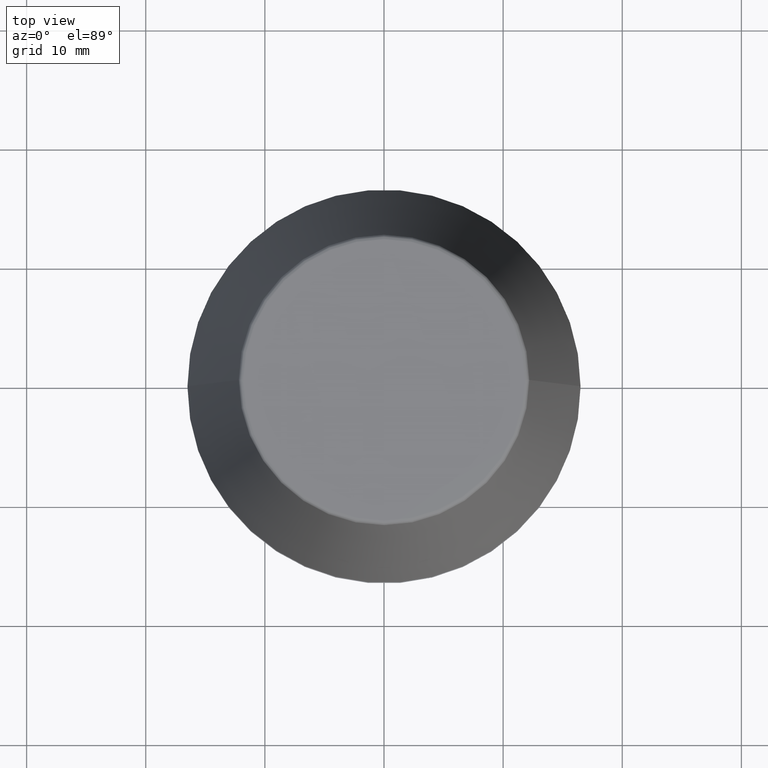
[diagram: clean part render]
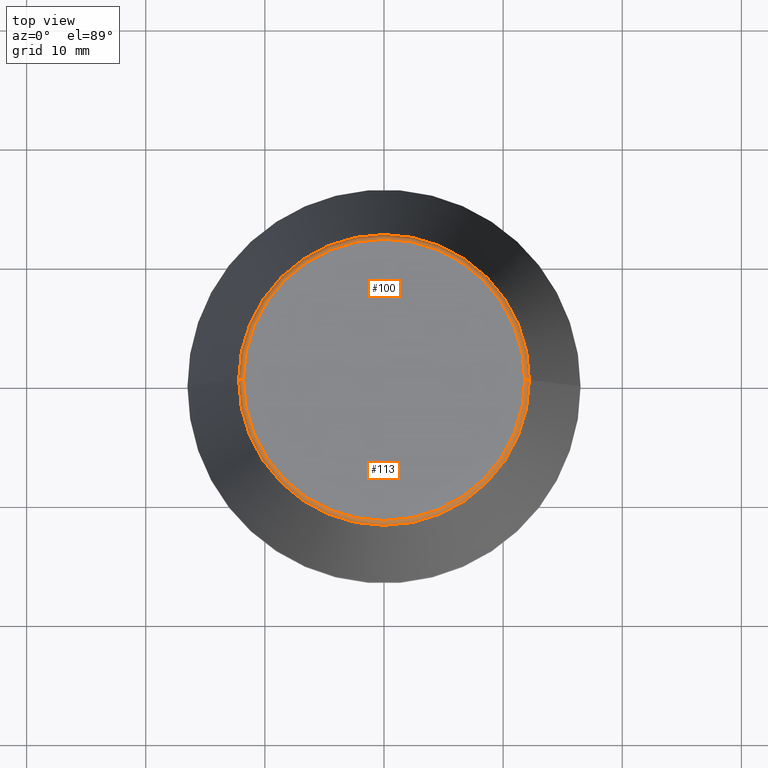
[diagram: same view with one multi-face feature highlighted, each face labeled with its STEP entity id]
A machine part, top view. The highlighted faces form ONE feature: a constant-radius fillet chain: 2 tangent blend faces with common blend radius 0.4 mm. The faces share edges in the B-rep.
Their STEP definitions:
[1] entity #100 (Torus):
#30 = VERTEX_POINT ( 'NONE', #198 ) ;
#37 = DIRECTION ( 'NONE',  ( -0.0000000000000000000, -0.0000000000000000000, 1.000000000000000000 ) ) ;
#50 = VERTEX_POINT ( 'NONE', #223 ) ;
#53 = AXIS2_PLACEMENT_3D ( 'NONE', #301, #37, #266 ) ;
#56 = VERTEX_POINT ( 'NONE', #282 ) ;
#57 = DIRECTION ( 'NONE',  ( -0.0000000000000000000, -0.0000000000000000000, 1.000000000000000000 ) ) ;
#77 = CIRCLE ( 'NONE', #298, 12.20600611160694300 ) ;
#87 = DIRECTION ( 'NONE',  ( 0.0000000000000000000, -1.000000000000000000, 0.0000000000000000000 ) ) ;
#100 = ADVANCED_FACE ( 'NONE', ( #193 ), #338, .T. ) ;
#126 = CARTESIAN_POINT ( 'NONE',  ( 11.80989888411031400, 0.0000000000000000000, 39.60000000000000100 ) ) ;
#127 = DIRECTION ( 'NONE',  ( 0.0000000000000000000, 0.0000000000000000000, -1.000000000000000000 ) ) ;
#131 = DIRECTION ( 'NONE',  ( -1.000000000000000000, 1.224646799147352500E-016, 0.0000000000000000000 ) ) ;
#136 = DIRECTION ( 'NONE',  ( 1.000000000000000000, 0.0000000000000000000, 0.0000000000000000000 ) ) ;
#154 = AXIS2_PLACEMENT_3D ( 'NONE', #369, #242, #136 ) ;
#157 = CARTESIAN_POINT ( 'NONE',  ( 11.80989888411031400, 0.0000000000000000000, 40.00000000000000700 ) ) ;
#158 = DIRECTION ( 'NONE',  ( 1.224646799147353200E-016, 1.000000000000000000, 0.0000000000000000000 ) ) ;
#172 = EDGE_LOOP ( 'NONE', ( #290, #191, #345, #303 ) ) ;
#187 = CARTESIAN_POINT ( 'NONE',  ( -11.80989888411031400, 1.446295486667959300E-015, 39.60000000000000100 ) ) ;
#191 = ORIENTED_EDGE ( 'NONE', *, *, #227, .T. ) ;
#193 = FACE_OUTER_BOUND ( 'NONE', #172, .T. ) ;
#198 = CARTESIAN_POINT ( 'NONE',  ( -12.20600611160694300, 0.0000000000000000000, 39.65566924038402900 ) ) ;
#223 = CARTESIAN_POINT ( 'NONE',  ( -11.80989888411031400, 1.470550059081603400E-015, 40.00000000000000700 ) ) ;
#227 = EDGE_CURVE ( 'NONE', #30, #50, #249, .T. ) ;
#234 = EDGE_CURVE ( 'NONE', #360, #50, #322, .T. ) ;
#239 = EDGE_CURVE ( 'NONE', #56, #30, #77, .T. ) ;
#242 = DIRECTION ( 'NONE',  ( -0.0000000000000000000, -0.0000000000000000000, 1.000000000000000000 ) ) ;
#249 = CIRCLE ( 'NONE', #349, 0.4000000000000028000 ) ;
#250 = AXIS2_PLACEMENT_3D ( 'NONE', #126, #87, #127 ) ;
#266 = DIRECTION ( 'NONE',  ( 1.000000000000000000, 0.0000000000000000000, 0.0000000000000000000 ) ) ;
#282 = CARTESIAN_POINT ( 'NONE',  ( 12.20600611160694300, 1.757755848304969800E-015, 39.65566924038402900 ) ) ;
#287 = CARTESIAN_POINT ( 'NONE',  ( 0.0000000000000000000, 0.0000000000000000000, 39.65566924038402900 ) ) ;
#290 = ORIENTED_EDGE ( 'NONE', *, *, #239, .T. ) ;
#298 = AXIS2_PLACEMENT_3D ( 'NONE', #287, #57, #319 ) ;
#301 = CARTESIAN_POINT ( 'NONE',  ( 0.0000000000000000000, 0.0000000000000000000, 40.00000000000000700 ) ) ;
#303 = ORIENTED_EDGE ( 'NONE', *, *, #321, .F. ) ;
#319 = DIRECTION ( 'NONE',  ( 1.000000000000000000, 0.0000000000000000000, 0.0000000000000000000 ) ) ;
#321 = EDGE_CURVE ( 'NONE', #56, #360, #378, .T. ) ;
#322 = CIRCLE ( 'NONE', #53, 11.80989888411031400 ) ;
#338 = TOROIDAL_SURFACE ( 'NONE', #154, 11.80989888411031400, 0.4000000000000026900 ) ;
#345 = ORIENTED_EDGE ( 'NONE', *, *, #234, .F. ) ;
#349 = AXIS2_PLACEMENT_3D ( 'NONE', #187, #158, #131 ) ;
#360 = VERTEX_POINT ( 'NONE', #157 ) ;
#369 = CARTESIAN_POINT ( 'NONE',  ( 0.0000000000000000000, 0.0000000000000000000, 39.60000000000000100 ) ) ;
#378 = CIRCLE ( 'NONE', #250, 0.4000000000000045200 ) ;
[2] entity #113 (Torus):
#16 = ORIENTED_EDGE ( 'NONE', *, *, #321, .T. ) ;
#30 = VERTEX_POINT ( 'NONE', #198 ) ;
#43 = CARTESIAN_POINT ( 'NONE',  ( 0.0000000000000000000, 0.0000000000000000000, 39.60000000000000100 ) ) ;
#50 = VERTEX_POINT ( 'NONE', #223 ) ;
#56 = VERTEX_POINT ( 'NONE', #282 ) ;
#62 = TOROIDAL_SURFACE ( 'NONE', #141, 11.80989888411031400, 0.4000000000000026900 ) ;
#83 = AXIS2_PLACEMENT_3D ( 'NONE', #92, #365, #188 ) ;
#87 = DIRECTION ( 'NONE',  ( 0.0000000000000000000, -1.000000000000000000, 0.0000000000000000000 ) ) ;
#92 = CARTESIAN_POINT ( 'NONE',  ( 0.0000000000000000000, 0.0000000000000000000, 40.00000000000000700 ) ) ;
#98 = AXIS2_PLACEMENT_3D ( 'NONE', #347, #367, #101 ) ;
#101 = DIRECTION ( 'NONE',  ( 1.000000000000000000, 0.0000000000000000000, 0.0000000000000000000 ) ) ;
#113 = ADVANCED_FACE ( 'NONE', ( #294 ), #62, .T. ) ;
#126 = CARTESIAN_POINT ( 'NONE',  ( 11.80989888411031400, 0.0000000000000000000, 39.60000000000000100 ) ) ;
#127 = DIRECTION ( 'NONE',  ( 0.0000000000000000000, 0.0000000000000000000, -1.000000000000000000 ) ) ;
#131 = DIRECTION ( 'NONE',  ( -1.000000000000000000, 1.224646799147352500E-016, 0.0000000000000000000 ) ) ;
#135 = DIRECTION ( 'NONE',  ( 1.000000000000000000, 0.0000000000000000000, 0.0000000000000000000 ) ) ;
#141 = AXIS2_PLACEMENT_3D ( 'NONE', #43, #194, #135 ) ;
#157 = CARTESIAN_POINT ( 'NONE',  ( 11.80989888411031400, 0.0000000000000000000, 40.00000000000000700 ) ) ;
#158 = DIRECTION ( 'NONE',  ( 1.224646799147353200E-016, 1.000000000000000000, 0.0000000000000000000 ) ) ;
#178 = EDGE_CURVE ( 'NONE', #30, #56, #309, .T. ) ;
#187 = CARTESIAN_POINT ( 'NONE',  ( -11.80989888411031400, 1.446295486667959300E-015, 39.60000000000000100 ) ) ;
#188 = DIRECTION ( 'NONE',  ( 1.000000000000000000, 0.0000000000000000000, 0.0000000000000000000 ) ) ;
#190 = EDGE_CURVE ( 'NONE', #50, #360, #199, .T. ) ;
#194 = DIRECTION ( 'NONE',  ( -0.0000000000000000000, -0.0000000000000000000, 1.000000000000000000 ) ) ;
#198 = CARTESIAN_POINT ( 'NONE',  ( -12.20600611160694300, 0.0000000000000000000, 39.65566924038402900 ) ) ;
#199 = CIRCLE ( 'NONE', #83, 11.80989888411031400 ) ;
#223 = CARTESIAN_POINT ( 'NONE',  ( -11.80989888411031400, 1.470550059081603400E-015, 40.00000000000000700 ) ) ;
#227 = EDGE_CURVE ( 'NONE', #30, #50, #249, .T. ) ;
#249 = CIRCLE ( 'NONE', #349, 0.4000000000000028000 ) ;
#250 = AXIS2_PLACEMENT_3D ( 'NONE', #126, #87, #127 ) ;
#263 = ORIENTED_EDGE ( 'NONE', *, *, #227, .F. ) ;
#280 = ORIENTED_EDGE ( 'NONE', *, *, #178, .T. ) ;
#282 = CARTESIAN_POINT ( 'NONE',  ( 12.20600611160694300, 1.757755848304969800E-015, 39.65566924038402900 ) ) ;
#294 = FACE_OUTER_BOUND ( 'NONE', #302, .T. ) ;
#302 = EDGE_LOOP ( 'NONE', ( #263, #280, #16, #366 ) ) ;
#309 = CIRCLE ( 'NONE', #98, 12.20600611160694300 ) ;
#321 = EDGE_CURVE ( 'NONE', #56, #360, #378, .T. ) ;
#347 = CARTESIAN_POINT ( 'NONE',  ( 0.0000000000000000000, 0.0000000000000000000, 39.65566924038402900 ) ) ;
#349 = AXIS2_PLACEMENT_3D ( 'NONE', #187, #158, #131 ) ;
#360 = VERTEX_POINT ( 'NONE', #157 ) ;
#365 = DIRECTION ( 'NONE',  ( -0.0000000000000000000, -0.0000000000000000000, 1.000000000000000000 ) ) ;
#366 = ORIENTED_EDGE ( 'NONE', *, *, #190, .F. ) ;
#367 = DIRECTION ( 'NONE',  ( -0.0000000000000000000, -0.0000000000000000000, 1.000000000000000000 ) ) ;
#378 = CIRCLE ( 'NONE', #250, 0.4000000000000045200 ) ;